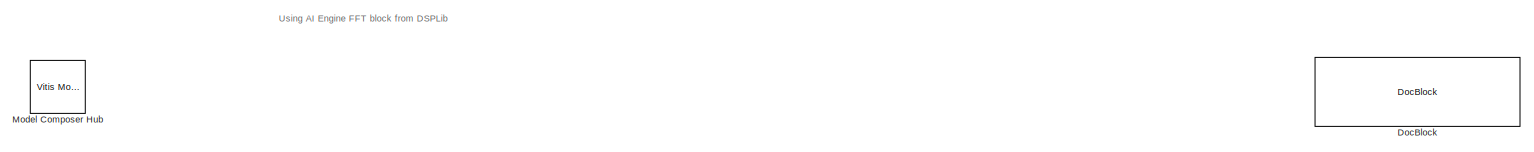
[diagram: root canvas - part 1/3, full width, top band]
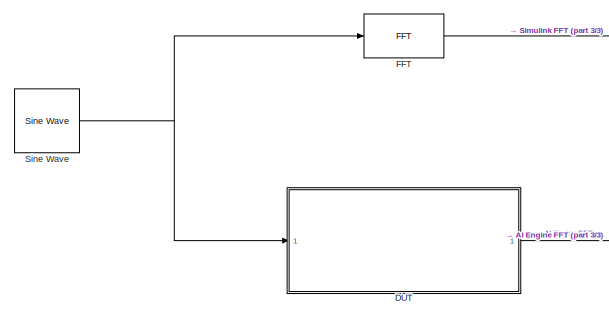
[diagram: root canvas - part 2/3, bottom left region]
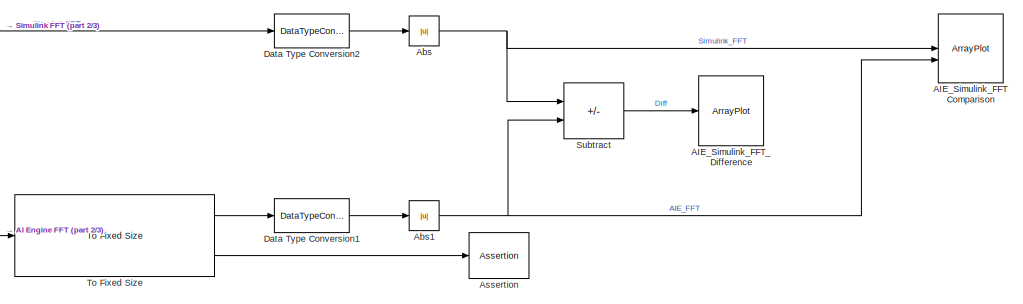
[diagram: root canvas - part 3/3, bottom right region]
MODEL slx_31a8c928f87e
KIND model
CONFIG AbsTol = auto
CONFIG EnableMultiTasking = off
CONFIG FixedStep = auto
CONFIG MaxStep = auto
CONFIG MinStep = auto
CONFIG RelTol = 1e-3
CONFIG SampleTimeConstraint = Unconstrained
CONFIG SolverName = VariableStepAuto
CONFIG StartTime = 0.0
CONFIG StopTime = 1
BLOCK [ArrayPlot] AIE_Simulink_FFT Comparison
  AxesScaling = Manual
  GraphicalSettings = {"Cursors":{"Enabled":false,"XLocation":[2,8],"SnapToData":false,"LockSpacing":false,"ShowText":false},"Peaks":{"NumPeaks":1,"MinHeight":"-Inf","MinDistance":1,"Threshold":0,"LabelPeaks":true,"LabelFormat":"x + y","Enabled":false},"Stats":{"ShowMax":true,"ShowMin":true,"ShowPeakToPeak":true,"ShowMean":true,"ShowVariance":false,"ShowStandardDeviation":true,"ShowMedian":true,"ShowRMS":true,"ShowMean...<+613ch>
  NumInputPorts = 2
  PlotType = Line
  ScopeFrameLocation = window
  ShowLegend = on
  WasSavedAsWebScope = on
  WindowPosition = [240.000000,110.000000,800.000000,500.000000,]
  YLimits = [-256 2304]
BLOCK [ArrayPlot] AIE_Simulink_FFT_Difference
  AxesScaling = Manual
  GraphicalSettings = {"Cursors":{"Enabled":false,"XLocation":[2,8],"SnapToData":false,"LockSpacing":false,"ShowText":false},"Peaks":{"NumPeaks":1,"MinHeight":"-Inf","MinDistance":1,"Threshold":0,"LabelPeaks":true,"LabelFormat":"x + y","Enabled":false},"Stats":{"ShowMax":true,"ShowMin":true,"ShowPeakToPeak":true,"ShowMean":true,"ShowVariance":false,"ShowStandardDeviation":true,"ShowMedian":true,"ShowRMS":true,"ShowMean...<+513ch>
  PlotType = Line
  ScopeFrameLocation = window
  ShowLegend = on
  WasSavedAsWebScope = on
  WindowPosition = [623.000000,119.000000,800.000000,500.000000,]
BLOCK [Abs] Abs
  SaturateOnIntegerOverflow = off
BLOCK [Abs] Abs1
  SaturateOnIntegerOverflow = off
BLOCK [Assertion] Assertion
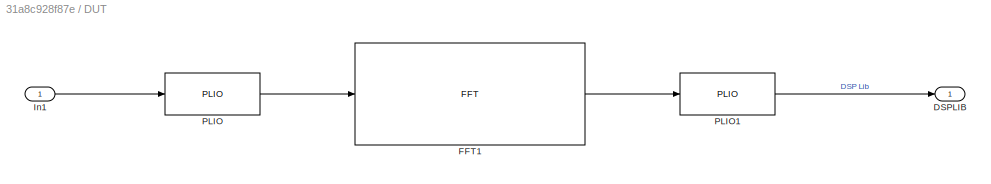
BLOCK [SubSystem] DUT
BLOCK [Outport] DUT/DSPLIB
BLOCK [Reference] DUT/FFT1  REF=aieDSP/FFT
  SourceBlock = aieDSP/FFT
  SourceType = FFT
BLOCK [Inport] DUT/In1
BLOCK [Reference] DUT/PLIO  REF=aieBasic/PLIO
  SourceBlock = aieBasic/PLIO
  SourceType = PLIO
BLOCK [Reference] DUT/PLIO1  REF=aieBasic/PLIO
  SourceBlock = aieBasic/PLIO
  SourceType = PLIO
BLOCK [DataTypeConversion] Data Type Conversion1
  OutDataTypeStr = double
  RndMeth = Floor
  SaturateOnIntegerOverflow = off
BLOCK [DataTypeConversion] Data Type Conversion2
  OutDataTypeStr = double
  RndMeth = Floor
  SaturateOnIntegerOverflow = off
BLOCK [Reference] DocBlock  REF=simulink/Model-Wide
Utilities/DocBlock
  SourceBlock = simulink/Model-Wide\nUtilities/DocBlock
  SourceType = DocBlock
  UserDataPersistent = on
BLOCK [Reference] FFT  REF=dspxfrm3/FFT
  SourceBlock = dspxfrm3/FFT
  SourceType = FFT
BLOCK [Reference] Model Composer Hub  REF=vmcUtilities/Vitis Model Composer Hub
  SourceBlock = vmcUtilities/Vitis Model Composer Hub
  SourceType = VMC Hub
  Tag = genX
  UserDataPersistent = on
BLOCK [Reference] Sine Wave  REF=dspsrcs4/Sine Wave
  SourceBlock = dspsrcs4/Sine Wave
  SourceType = Sine Wave
BLOCK [Sum] Subtract
  IconShape = rectangular
  Inputs = +-
BLOCK [Reference] To Fixed Size  REF=aieUtilities/To Fixed Size
  SourceBlock = aieUtilities/To Fixed Size
  SourceType = To Fixed Size
ANNOTATION (root): Using AI Engine FFT block from DSPLib
NET Abs1:1 -> AIE_Simulink_FFT Comparison:2, Subtract:2
NET Abs:1 -> AIE_Simulink_FFT Comparison:1, Subtract:1
LINE DUT/FFT1:1 -> DUT/PLIO1:1
LINE DUT/In1:1 -> DUT/PLIO:1
LINE DUT/PLIO1:1 -> DUT/DSPLIB:1
LINE DUT/PLIO:1 -> DUT/FFT1:1
LINE DUT:1 -> To Fixed Size:1
LINE Data Type Conversion1:1 -> Abs1:1
LINE Data Type Conversion2:1 -> Abs:1
LINE FFT:1 -> Data Type Conversion2:1
NET Sine Wave:1 -> DUT:1, FFT:1
LINE Subtract:1 -> AIE_Simulink_FFT_Difference:1
LINE To Fixed Size:1 -> Data Type Conversion1:1
LINE To Fixed Size:2 -> Assertion:1
note: NET lines group one-source signal fan-out (src -> all destinations, sorted); 1:1 wires keep LINE
